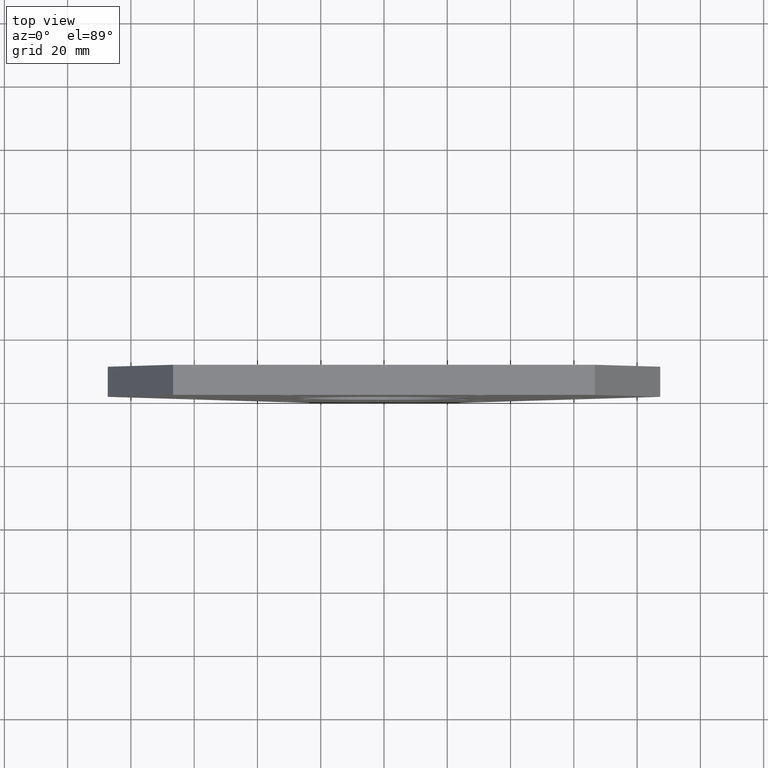
[diagram: clean part render]
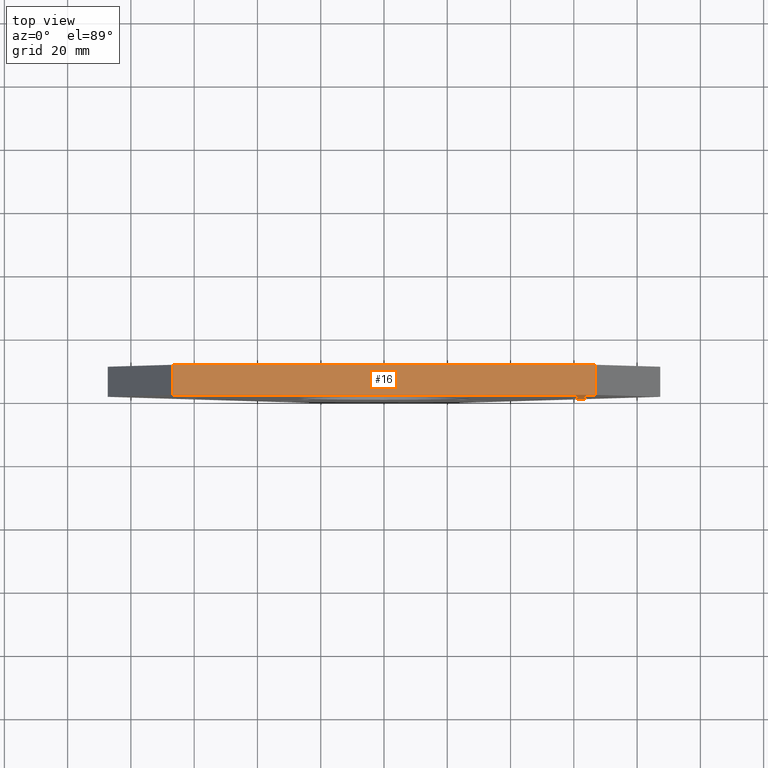
[diagram: same view with one face highlighted and labeled with its STEP entity id]
A machine part, top view. The second image highlights one B-rep face of the part: STEP entity #16.
In plain terms, the highlighted planar face has unit normal (0, 0, -1).
Its self-contained STEP definition (entity closure, byte-faithful):
#16 = ADVANCED_FACE ( 'NONE', ( #935 ), #319, .F. ) ;
#34 = VERTEX_POINT ( 'NONE', #206 ) ;
#38 = VERTEX_POINT ( 'NONE', #203 ) ;
#41 = VERTEX_POINT ( 'NONE', #200 ) ;
#99 = VERTEX_POINT ( 'NONE', #152 ) ;
#152 = CARTESIAN_POINT ( 'NONE',  ( -2.624785217660711800, 0.0000000000000000000, 2.453738644055909900 ) ) ;
#200 = CARTESIAN_POINT ( 'NONE',  ( -2.624785217660711800, 0.3750000000000000600, 2.453738644055909900 ) ) ;
#203 = CARTESIAN_POINT ( 'NONE',  ( 2.624785217660712300, 0.3750000000000000600, 2.453738644055909900 ) ) ;
#206 = CARTESIAN_POINT ( 'NONE',  ( 2.624785217660712300, 0.0000000000000000000, 2.453738644055909900 ) ) ;
#281 = DIRECTION ( 'NONE',  ( -0.0000000000000000000, -1.000000000000000000, -0.0000000000000000000 ) ) ;
#282 = CARTESIAN_POINT ( 'NONE',  ( 2.624785217660712300, 0.3750000000000000600, 2.453738644055909900 ) ) ;
#285 = DIRECTION ( 'NONE',  ( -0.0000000000000000000, -1.000000000000000000, -0.0000000000000000000 ) ) ;
#286 = CARTESIAN_POINT ( 'NONE',  ( -2.624785217660711800, 0.3750000000000000600, 2.453738644055909900 ) ) ;
#292 = DIRECTION ( 'NONE',  ( 1.000000000000000000, 0.0000000000000000000, 0.0000000000000000000 ) ) ;
#293 = CARTESIAN_POINT ( 'NONE',  ( -2.624785217660711800, 0.0000000000000000000, 2.453738644055909900 ) ) ;
#309 = DIRECTION ( 'NONE',  ( -1.000000000000000000, 0.0000000000000000000, -0.0000000000000000000 ) ) ;
#312 = DIRECTION ( 'NONE',  ( 0.0000000000000000000, 0.0000000000000000000, -1.000000000000000000 ) ) ;
#316 = CARTESIAN_POINT ( 'NONE',  ( -2.624785217660711800, 0.3750000000000000600, 2.453738644055909900 ) ) ;
#319 = PLANE ( 'NONE',  #553 ) ;
#364 = DIRECTION ( 'NONE',  ( 1.000000000000000000, 0.0000000000000000000, 0.0000000000000000000 ) ) ;
#365 = CARTESIAN_POINT ( 'NONE',  ( -2.624785217660711800, 0.3750000000000000600, 2.453738644055909900 ) ) ;
#553 = AXIS2_PLACEMENT_3D ( 'NONE', #316, #312, #309 ) ;
#624 = EDGE_CURVE ( 'NONE', #41, #38, #809, .T. ) ;
#645 = EDGE_CURVE ( 'NONE', #99, #34, #778, .T. ) ;
#647 = EDGE_CURVE ( 'NONE', #41, #99, #776, .T. ) ;
#649 = EDGE_CURVE ( 'NONE', #38, #34, #771, .T. ) ;
#669 = ORIENTED_EDGE ( 'NONE', *, *, #647, .T. ) ;
#673 = ORIENTED_EDGE ( 'NONE', *, *, #624, .F. ) ;
#770 = VECTOR ( 'NONE', #281, 39.37007874015748100 ) ;
#771 = LINE ( 'NONE', #282, #770 ) ;
#774 = VECTOR ( 'NONE', #285, 39.37007874015748100 ) ;
#776 = LINE ( 'NONE', #286, #774 ) ;
#777 = VECTOR ( 'NONE', #292, 39.37007874015748100 ) ;
#778 = LINE ( 'NONE', #293, #777 ) ;
#808 = VECTOR ( 'NONE', #364, 39.37007874015748100 ) ;
#809 = LINE ( 'NONE', #365, #808 ) ;
#935 = FACE_OUTER_BOUND ( 'NONE', #1036, .T. ) ;
#986 = ORIENTED_EDGE ( 'NONE', *, *, #645, .T. ) ;
#987 = ORIENTED_EDGE ( 'NONE', *, *, #649, .F. ) ;
#1036 = EDGE_LOOP ( 'NONE', ( #986, #987, #673, #669 ) ) ;